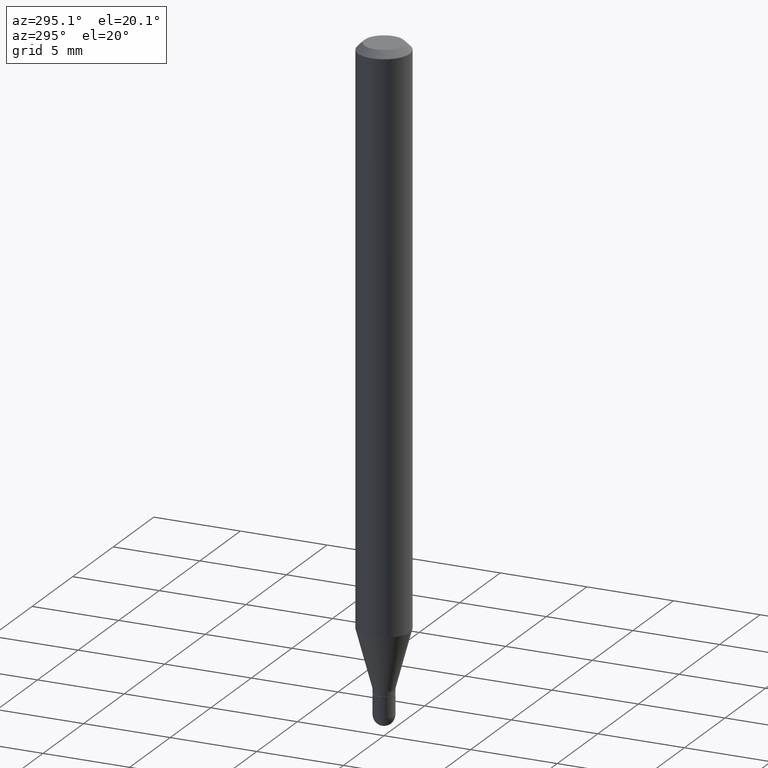
[diagram: clean part render]
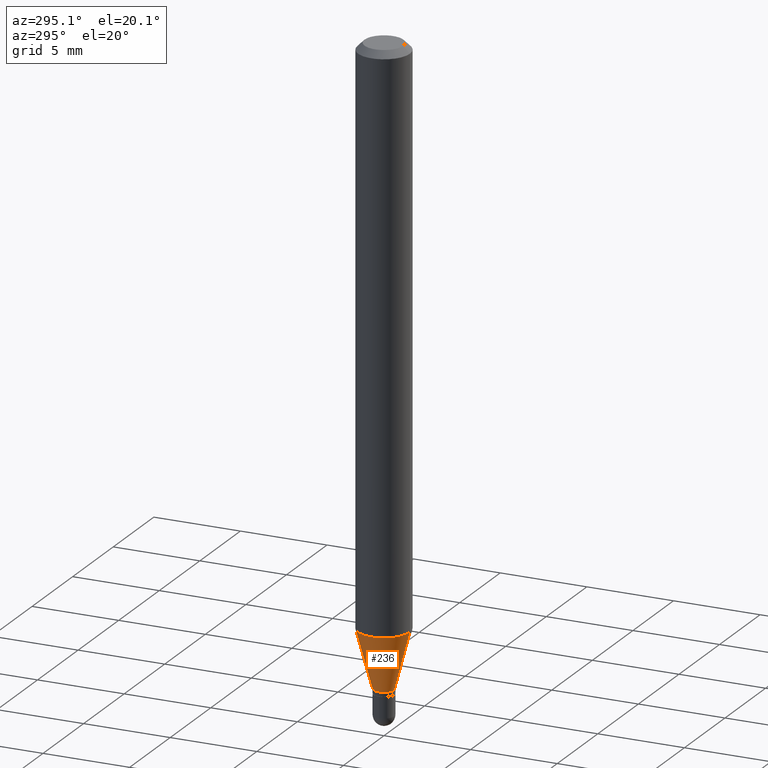
[diagram: same view with one face highlighted and labeled with its STEP entity id]
A machine part, auxiliary view. The second image highlights one B-rep face of the part: STEP entity #236.
In plain terms, the highlighted conical surface has half-angle 15 deg.
Its self-contained STEP definition (entity closure, byte-faithful):
#10 = CONICAL_SURFACE ( 'NONE', #197, 0.02359999999999991965, 0.2617993877991507401 ) ;
#11 = CARTESIAN_POINT ( 'NONE',  ( -1.647979191933606997E-16, -0.02360000000000486362, -1.415099999999999802 ) ) ;
#14 = CARTESIAN_POINT ( 'NONE',  ( 4.195754854663702585E-16, 0.05904999999999548110, -1.282798798871683799 ) ) ;
#56 = CARTESIAN_POINT ( 'NONE',  ( 2.936317855528941933E-16, 0.02359999999999497916, -1.415099999999999802 ) ) ;
#66 = ORIENTED_EDGE ( 'NONE', *, *, #200, .T. ) ;
#71 = DIRECTION ( 'NONE',  ( -2.445409518565941942E-29, 3.491566242088273714E-15, 1.000000000000000000 ) ) ;
#88 = CARTESIAN_POINT ( 'NONE',  ( 3.460499009722664544E-29, -4.940915389179115947E-15, -1.415099999999999802 ) ) ;
#90 = ORIENTED_EDGE ( 'NONE', *, *, #137, .F. ) ;
#92 = VERTEX_POINT ( 'NONE', #432 ) ;
#99 = DIRECTION ( 'NONE',  ( -2.445409518565941942E-29, 3.491566242088273714E-15, 1.000000000000000000 ) ) ;
#120 = CARTESIAN_POINT ( 'NONE',  ( 1.676880856394176596E-16, 0.02359999999999497916, -1.415099999999999802 ) ) ;
#121 = DIRECTION ( 'NONE',  ( -6.982962677686265922E-15, -1.000000000000000000, 0.000000000000000000 ) ) ;
#128 = EDGE_CURVE ( 'NONE', #327, #228, #196, .T. ) ;
#137 = EDGE_CURVE ( 'NONE', #228, #92, #454, .T. ) ;
#139 = EDGE_LOOP ( 'NONE', ( #315, #66, #269, #90 ) ) ;
#142 = AXIS2_PLACEMENT_3D ( 'NONE', #316, #71, #240 ) ;
#144 = CIRCLE ( 'NONE', #395, 0.02359999999999991965 ) ;
#196 = LINE ( 'NONE', #120, #367 ) ;
#197 = AXIS2_PLACEMENT_3D ( 'NONE', #88, #99, #396 ) ;
#200 = EDGE_CURVE ( 'NONE', #327, #221, #144, .T. ) ;
#221 = VERTEX_POINT ( 'NONE', #360 ) ;
#228 = VERTEX_POINT ( 'NONE', #14 ) ;
#236 = ADVANCED_FACE ( 'NONE', ( #297 ), #10, .T. ) ;
#240 = DIRECTION ( 'NONE',  ( -6.982962677686265922E-15, -1.000000000000000000, 4.626330217890369336E-15 ) ) ;
#269 = ORIENTED_EDGE ( 'NONE', *, *, #460, .T. ) ;
#297 = FACE_OUTER_BOUND ( 'NONE', #139, .T. ) ;
#315 = ORIENTED_EDGE ( 'NONE', *, *, #128, .F. ) ;
#316 = CARTESIAN_POINT ( 'NONE',  ( 3.136968393165772495E-29, -4.478976981531755489E-15, -1.282798798871683577 ) ) ;
#318 = LINE ( 'NONE', #11, #424 ) ;
#326 = DIRECTION ( 'NONE',  ( -1.807323732225332900E-15, -0.2588190451025185745, 0.9659258262890687563 ) ) ;
#327 = VERTEX_POINT ( 'NONE', #56 ) ;
#360 = CARTESIAN_POINT ( 'NONE',  ( -1.647979191933606997E-16, -0.02360000000000486362, -1.415099999999999802 ) ) ;
#364 = DIRECTION ( 'NONE',  ( 1.839019923739603471E-15, 0.2588190451025254024, 0.9659258262890670910 ) ) ;
#367 = VECTOR ( 'NONE', #364, 39.37007874015748143 ) ;
#395 = AXIS2_PLACEMENT_3D ( 'NONE', #471, #467, #121 ) ;
#396 = DIRECTION ( 'NONE',  ( -6.982962677686265922E-15, -1.000000000000000000, 0.000000000000000000 ) ) ;
#424 = VECTOR ( 'NONE', #326, 39.37007874015748854 ) ;
#432 = CARTESIAN_POINT ( 'NONE',  ( -4.123439461173428234E-16, -0.05905000000000449473, -1.282798798871683355 ) ) ;
#454 = CIRCLE ( 'NONE', #142, 0.05904999999999999832 ) ;
#460 = EDGE_CURVE ( 'NONE', #221, #92, #318, .T. ) ;
#467 = DIRECTION ( 'NONE',  ( -2.445409518565941942E-29, 3.491566242088273714E-15, 1.000000000000000000 ) ) ;
#471 = CARTESIAN_POINT ( 'NONE',  ( 3.460499009722664544E-29, -4.940915389179115947E-15, -1.415099999999999802 ) ) ;